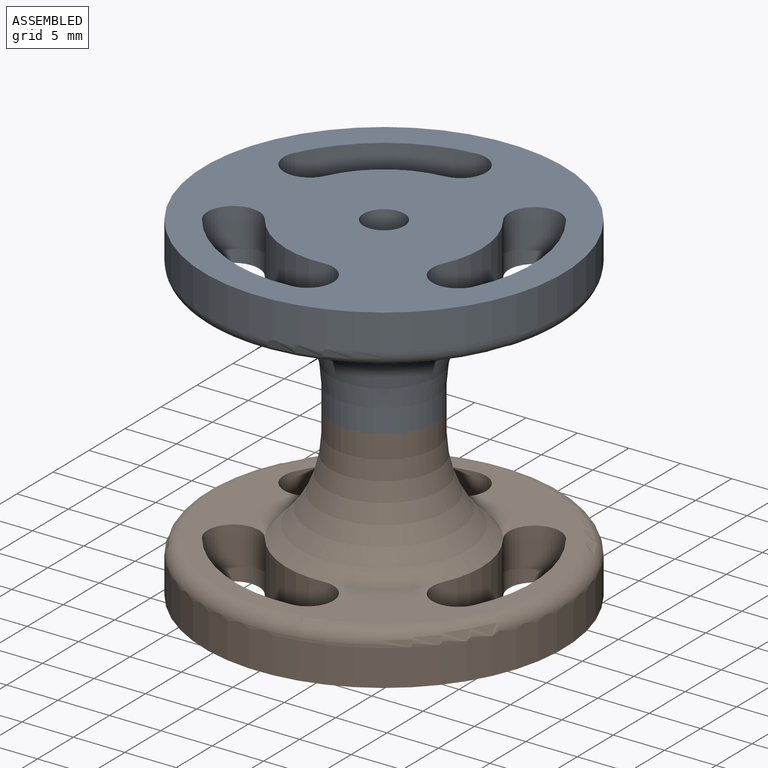
[diagram: assembled view]
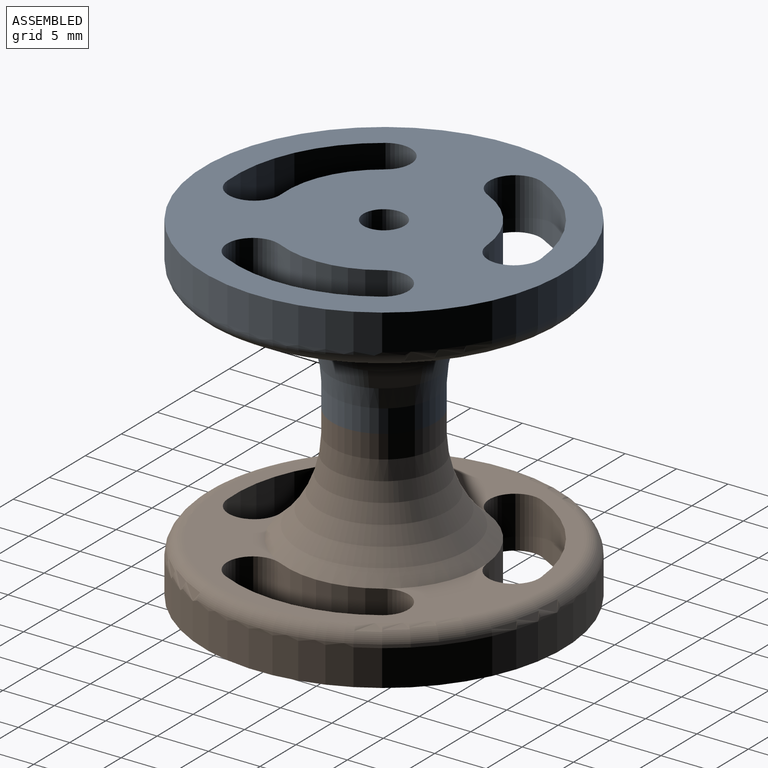
[diagram: assembled view, second angle]
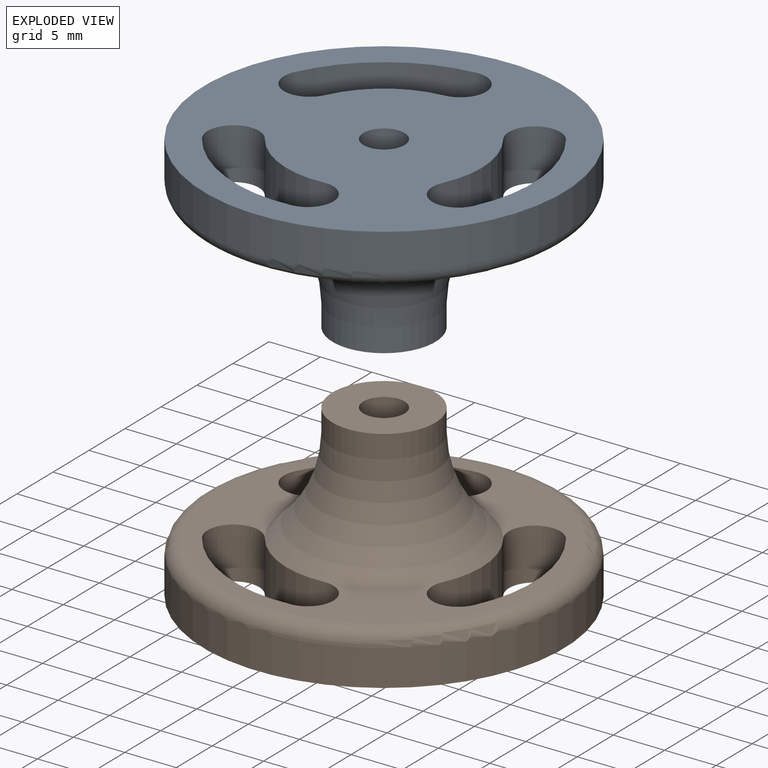
[diagram: exploded view]
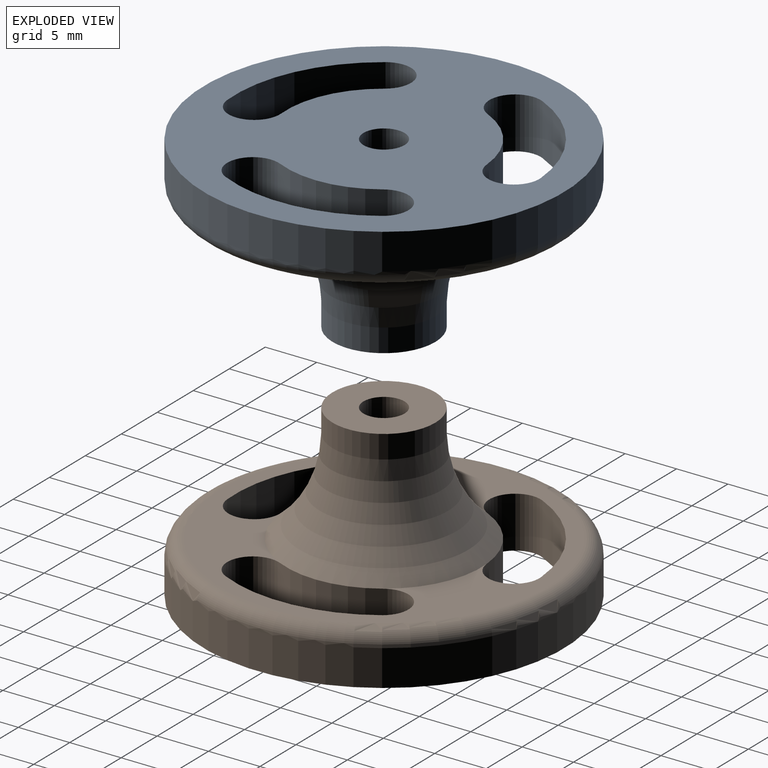
[diagram: exploded view, second angle]
ASSEMBLY  parts=2 mates=2
PART A: 20 faces, bbox 37.9x37.9x16.5 mm
  f0: plane 35x35mm, normal (0,0,1), area 702.1mm2, adj f2,f3,f4,f5,f6,f7,f8,f9
  f1: plane 32x32mm, normal (0,0,-1), area 273.3mm2, adj f4,f6,f7,f9,f10,f11,f12,f13
  f2: cylinder r=2mm len=16.5mm, axis (0,0,-1), area 207.3mm2, adj f0,f19
  f3: cylinder r=17.5mm len=35mm, axis (0,0,-1), area 384.8mm2, adj f0,f17
  f4: cylinder r=2.5mm len=5mm, axis (0,0,-1), area 39.3mm2, adj f0,f1,f5,f7
  f5: cylinder r=9.5mm len=8.23mm, axis (0,0,-1), area 49.7mm2, adj f0,f4,f6,f16
  f6: cylinder r=2.5mm len=5mm, axis (0,0,-1), area 39.3mm2, adj f0,f1,f5,f7
  f7: cylinder r=14.5mm len=12.56mm, axis (0,0,-1), area 75.9mm2, adj f0,f1,f4,f6
  f8: cylinder r=9.5mm len=9.5mm, axis (0,0,-1), area 49.7mm2, adj f0,f9,f11,f16
  f9: cylinder r=2.5mm len=5mm, axis (0,0,-1), area 39.3mm2, adj f0,f1,f8,f10
  f10: cylinder r=14.5mm len=14.5mm, axis (0,0,-1), area 75.9mm2, adj f0,f1,f9,f11
  f11: cylinder r=2.5mm len=5mm, axis (0,0,-1), area 39.3mm2, adj f0,f1,f8,f10
  f12: cylinder r=2.5mm len=5mm, axis (0,0,-1), area 39.3mm2, adj f0,f1,f13,f15
  f13: cylinder r=14.5mm len=12.56mm, axis (0,0,-1), area 75.9mm2, adj f0,f1,f12,f14
  f14: cylinder r=2.5mm len=5mm, axis (0,0,-1), area 39.3mm2, adj f0,f1,f13,f15
  f15: cylinder r=9.5mm len=8.23mm, axis (0,0,-1), area 49.7mm2, adj f0,f12,f14,f16
  f16: torus R=17.21mm, axis (0,0,1), area 438.4mm2, adj f1,f5,f8,f15,f18
  f17: torus R=16mm, axis (0,0,1), area 251mm2, adj f1,f3
  f18: cylinder r=5mm len=10mm, axis (0,0,1), area 70.7mm2, adj f16,f19
  f19: plane 10x10mm, normal (0,0,-1), area 66mm2, adj f2,f18
PART B: same geometry as A
PLACE A rot(axis=(0,0,-1),55.5deg) t=(-0.33,-30.67,-8.04)mm
PLACE B rot(axis=(0.04,-1,0),180deg) t=(-0.33,-30.67,-31.04)mm
MATE revolute A.f16 <-> B.f16  axis (0,0,-1) through (-0.33,-30.67,-19.54)mm
MATE cylindrical A.f12 <-> B.f11  axis (0,0,-1) through (9.56,-23.87,-5.54)mm
